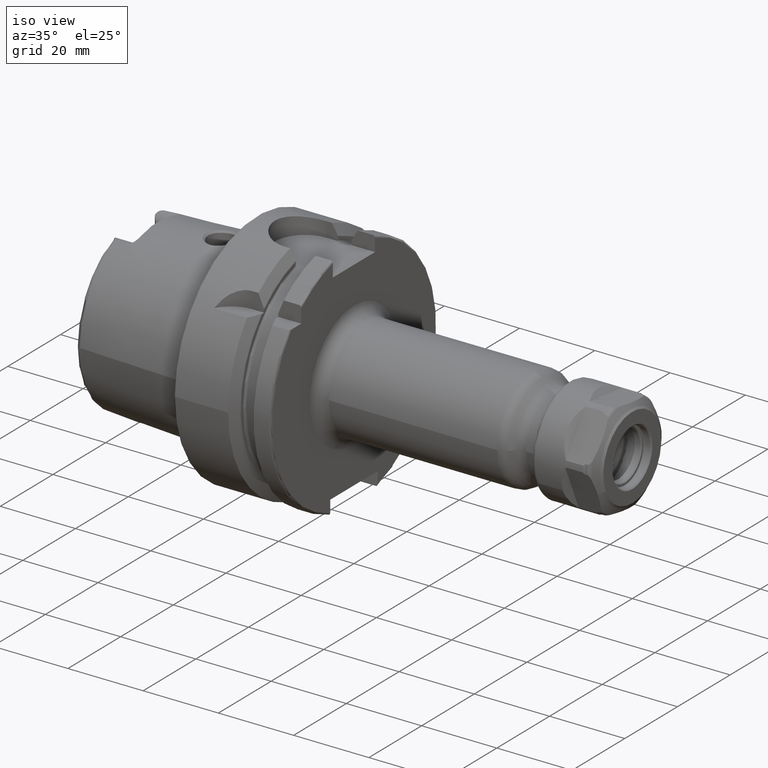
[diagram: clean part render]
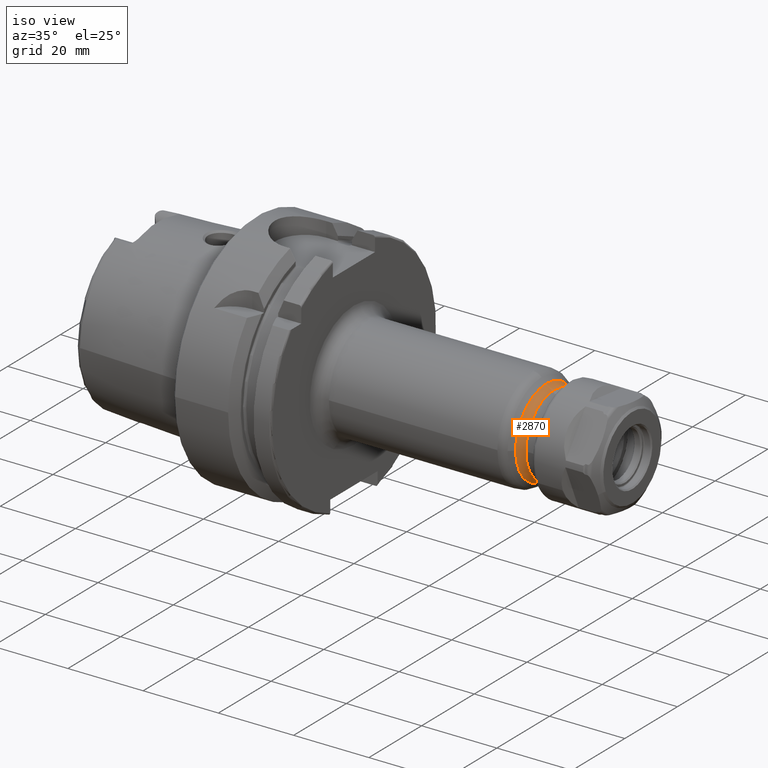
[diagram: same view with one face highlighted and labeled with its STEP entity id]
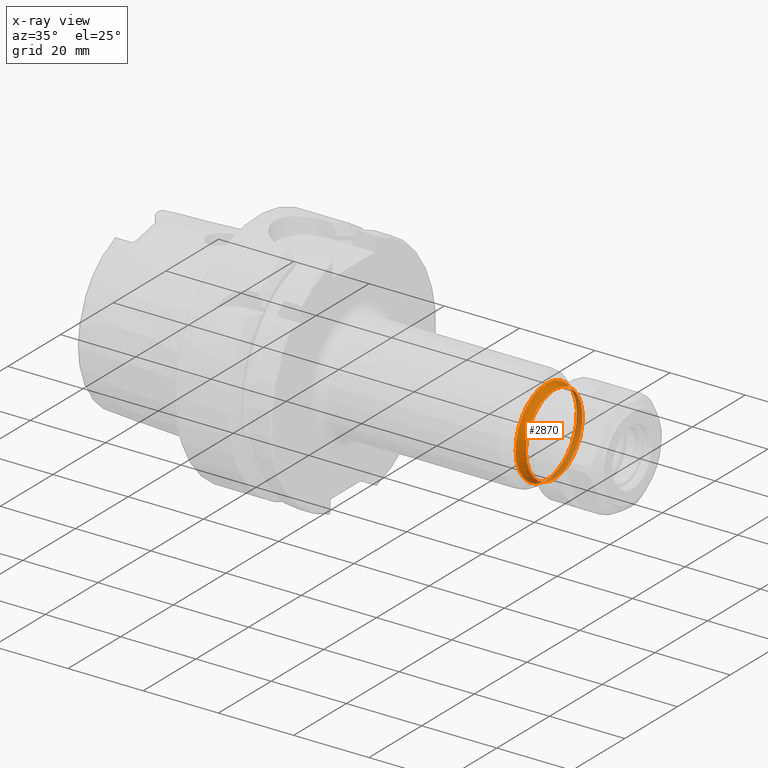
[diagram: x-ray of the same camera — body ghosted, the highlighted face saturated]
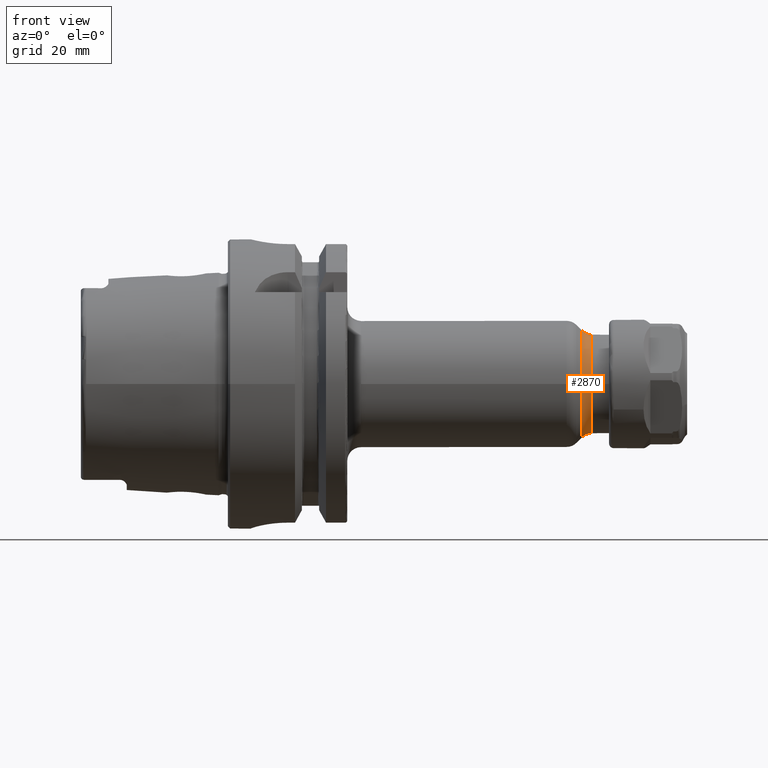
[diagram: same view with one face highlighted and labeled with its STEP entity id]
A machine part, iso view. The second image highlights one B-rep face of the part: STEP entity #2870.
The next image is the same camera in x-ray: the body ghosted, the highlighted face saturated — about 29% of this face is hidden behind the body in this view.
A second angle (front view) of the same face is appended — the face is thin or edge-on in the first view.
In plain terms, the highlighted toroidal blend (fillet) surface has major radius 13.75 mm and minor (blend) radius 3 mm.
Its self-contained STEP definition (entity closure, byte-faithful):
#220=TOROIDAL_SURFACE('',#3123,13.75,3.);
#308=FACE_OUTER_BOUND('',#481,.T.);
#481=EDGE_LOOP('',(#1947,#1948,#1949,#1950,#1951,#1952));
#979=CIRCLE('',#3124,11.6286796564404);
#980=CIRCLE('',#3125,3.);
#981=CIRCLE('',#3126,10.75);
#982=CIRCLE('',#3127,10.75);
#983=CIRCLE('',#3128,11.6286796564404);
#1166=VERTEX_POINT('',#4432);
#1167=VERTEX_POINT('',#4433);
#1168=VERTEX_POINT('',#4435);
#1169=VERTEX_POINT('',#4437);
#1471=EDGE_CURVE('',#1166,#1167,#979,.T.);
#1472=EDGE_CURVE('',#1167,#1168,#980,.T.);
#1473=EDGE_CURVE('',#1168,#1169,#981,.T.);
#1474=EDGE_CURVE('',#1169,#1168,#982,.T.);
#1475=EDGE_CURVE('',#1167,#1166,#983,.T.);
#1947=ORIENTED_EDGE('',*,*,#1471,.T.);
#1948=ORIENTED_EDGE('',*,*,#1472,.T.);
#1949=ORIENTED_EDGE('',*,*,#1473,.T.);
#1950=ORIENTED_EDGE('',*,*,#1474,.T.);
#1951=ORIENTED_EDGE('',*,*,#1472,.F.);
#1952=ORIENTED_EDGE('',*,*,#1475,.T.);
#2870=ADVANCED_FACE('',(#308),#220,.F.);
#3123=AXIS2_PLACEMENT_3D('',#4431,#3532,#3533);
#3124=AXIS2_PLACEMENT_3D('',#4434,#3534,#3535);
#3125=AXIS2_PLACEMENT_3D('',#4436,#3536,#3537);
#3126=AXIS2_PLACEMENT_3D('',#4438,#3538,#3539);
#3127=AXIS2_PLACEMENT_3D('',#4439,#3540,#3541);
#3128=AXIS2_PLACEMENT_3D('',#4440,#3542,#3543);
#3532=DIRECTION('center_axis',(1.,0.,0.));
#3533=DIRECTION('ref_axis',(0.,0.,-1.));
#3534=DIRECTION('center_axis',(1.,0.,0.));
#3535=DIRECTION('ref_axis',(0.,-1.,3.06161699786838E-17));
#3536=DIRECTION('center_axis',(0.,-1.,-1.22464679914735E-16));
#3537=DIRECTION('ref_axis',(0.,-1.22464679914735E-16,1.));
#3538=DIRECTION('center_axis',(-1.,0.,0.));
#3539=DIRECTION('ref_axis',(0.,-1.,1.83697019872103E-16));
#3540=DIRECTION('center_axis',(-1.,0.,0.));
#3541=DIRECTION('ref_axis',(0.,-1.,1.83697019872103E-16));
#3542=DIRECTION('center_axis',(1.,0.,0.));
#3543=DIRECTION('ref_axis',(0.,-1.,3.06161699786838E-17));
#4431=CARTESIAN_POINT('Origin',(79.2426406871193,0.,0.));
#4432=CARTESIAN_POINT('',(77.1213203435596,-11.6286796564404,-1.42410253195696E-15));
#4433=CARTESIAN_POINT('',(77.1213203435596,-1.42410253195696E-15,11.6286796564404));
#4434=CARTESIAN_POINT('Origin',(77.1213203435596,0.,-1.7801281649462E-15));
#4435=CARTESIAN_POINT('',(79.2426406871193,-1.3164953090834E-15,10.75));
#4436=CARTESIAN_POINT('Origin',(79.2426406871193,-1.68388934882761E-15,
13.75));
#4437=CARTESIAN_POINT('',(79.2426406871193,-10.75,-1.3164953090834E-15));
#4438=CARTESIAN_POINT('Origin',(79.2426406871193,0.,0.));
#4439=CARTESIAN_POINT('Origin',(79.2426406871193,0.,0.));
#4440=CARTESIAN_POINT('Origin',(77.1213203435596,0.,-1.7801281649462E-15));